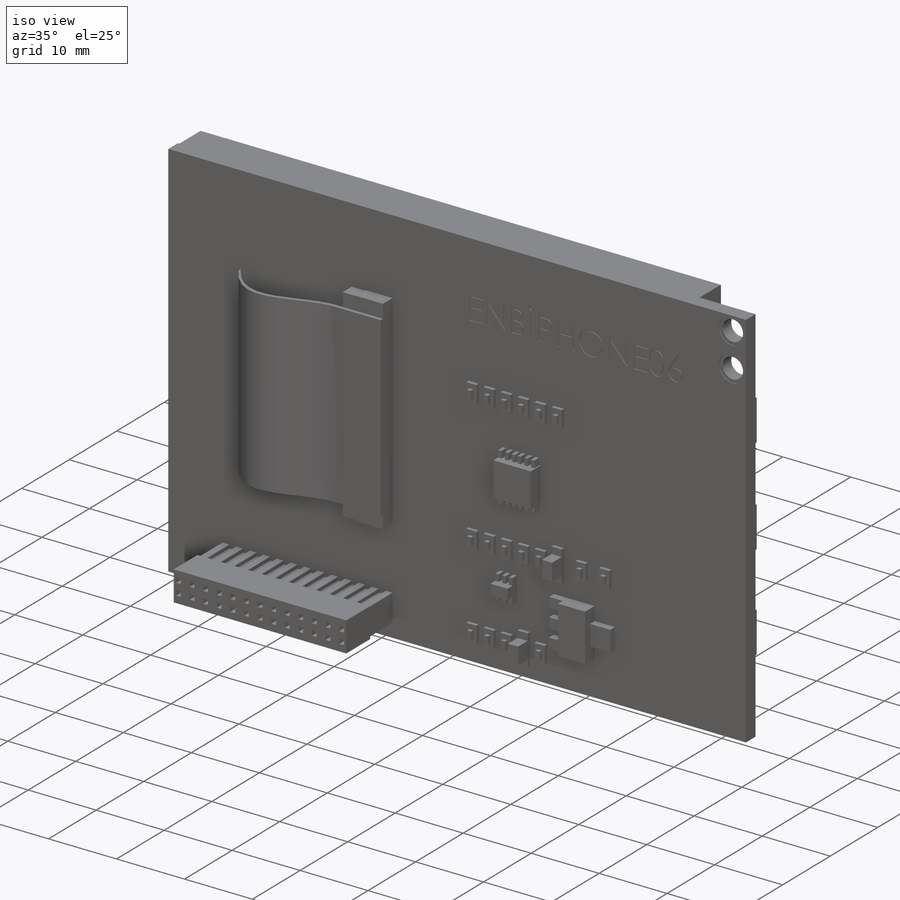
[diagram: iso view]
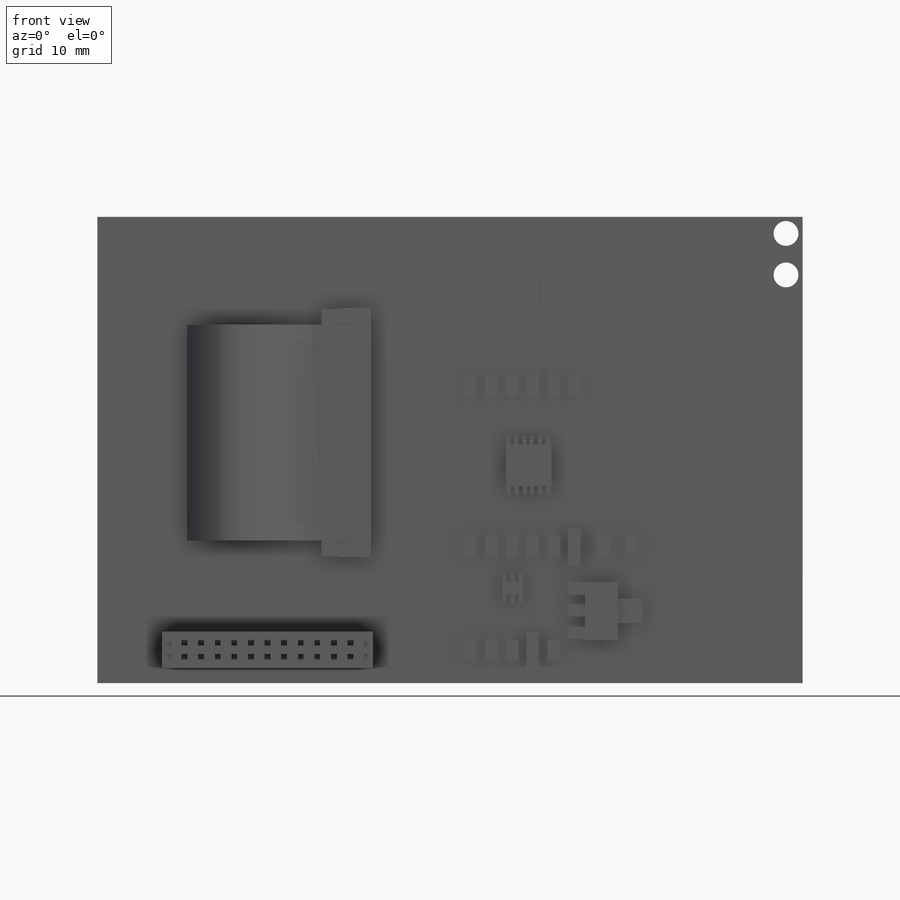
[diagram: front view]
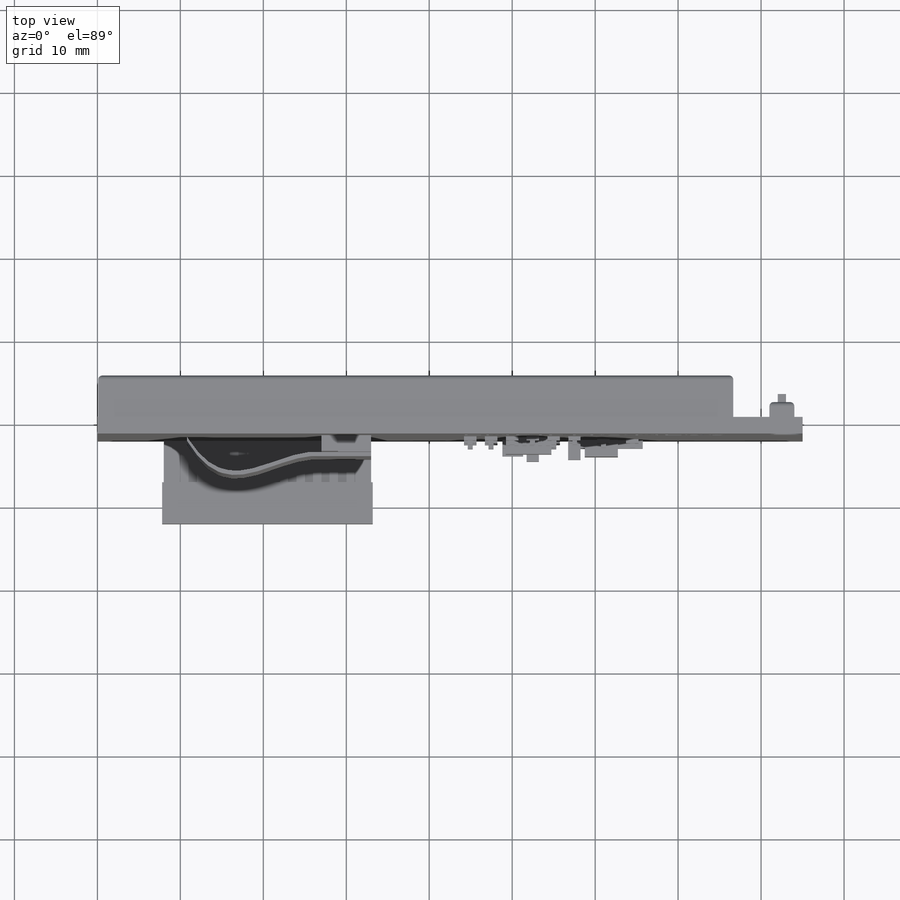
[diagram: top view]
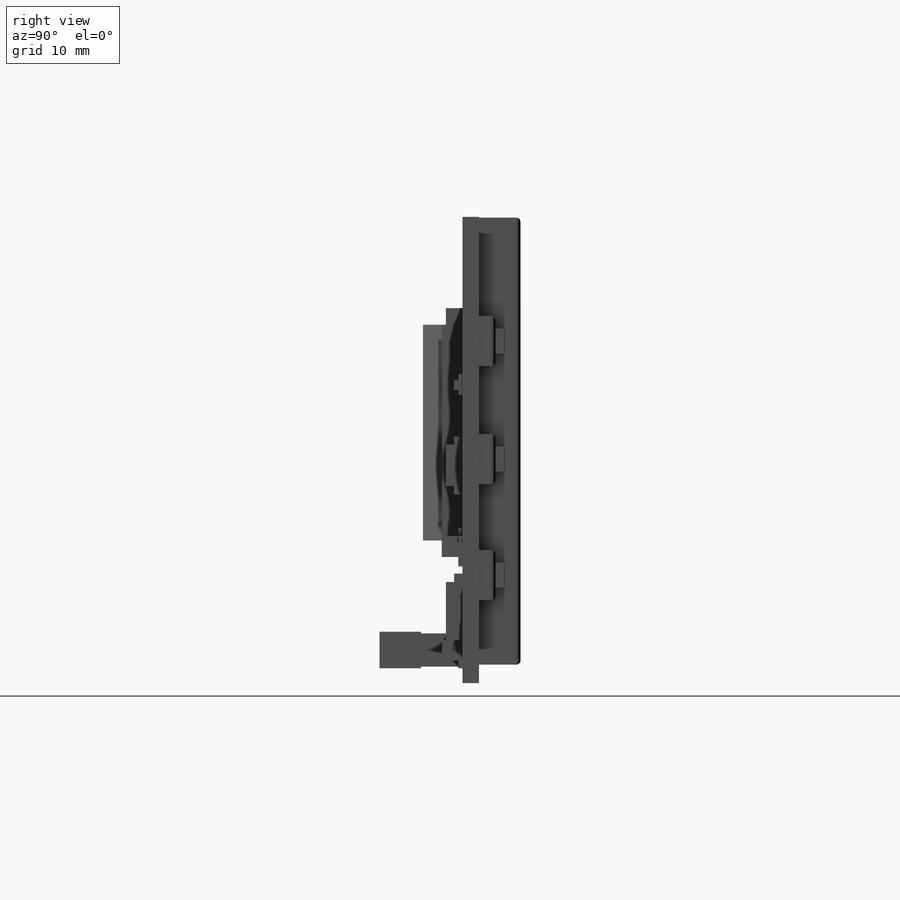
[diagram: right view]
SOLIDWORKS PART (.sldprt)
format: sldprt  version: not decoded by parser v0  size: 1,292,288 bytes
history: native  units: mm
features: sketch x20, extrude x15, cut_extrude x5, fillet x2, material x1 (+11 scaffold rows collapsed)
feature tree (54):
  scaffold x11  (default folders/planes/origin — collapsed)
  material  "Material <not specified>"
  sketch  "Sketch1"  dims[D1=85.01mm D2=56.21mm]
  extrude  "Boss-Extrude1"  Depth=2mm
  sketch  "Sketch2"  dims[D1=4.0mm D4=3.0mm D6=3.0mm D7=4.0mm D2=2.0mm D3=2.0mm D5=5.0mm]
  cut_extrude  "Cut-Extrude1"  Depth=2mm
  sketch  "Sketch4"  dims[D1=3.9mm D2=3.9mm]
  cut_extrude  "Cut-Extrude7"  Depth=0.1mm
  sketch  "Sketch5"  dims[D1=3.9mm D2=3.9mm]
  cut_extrude  "Cut-Extrude8"  Depth=0.1mm
  sketch  "Sketch6"  dims[c1.D1=2.23mm c1.D2=8.36mm c2.D1=0.1mm c2.D2=0.1mm c2.D3=2.23mm c2.D4=8.36mm]
  extrude  "Boss-Extrude2"  Depth=5mm
  sketch  "Sketch7"  dims[c1.D1=1.5mm c1.D2=1.5mm c1.D3=1.5mm c1.D4=1.5mm c2.D1=1.4mm c2.D2=1.4mm c2.D3=1.5mm c2.D4=1.5mm]
  cut_extrude  "Cut-Extrude9"  Depth=0.1mm
  fillet  "Fillet1"  Radius=0.5mm
  sketch  "Sketch8"  dims[D1=6.0mm D2=6.0mm D3=6.0mm D4=10.0mm D5=12.0mm D6=8.0mm D7=1.0mm D8=1.0mm D9=3.0mm D10=3.0mm D11=3.0mm]
  extrude  "Boss-Extrude3"  Depth=2mm
  fillet  "Fillet2"  Radius=0.5mm
  sketch  "Sketch9"  dims[D1=1.0mm D2=3.0mm D3=0.5mm D4=1.0mm D5=1.0mm D6=3.0mm D7=0.5mm D8=1.0mm D9=1.0mm D10=3.0mm D11=0.5mm D12=1.0mm]
  extrude  "Boss-Extrude4"  Depth=1mm
  sketch  "Sketch10"  dims[c1.D1=2.0mm c1.D2=8.0mm c1.D3=25.0mm c1.D4=4.0mm c2.D1=1.0mm c2.D5=1.0mm c2.D6=0.5mm c2.D7=0.5mm c2.D8=13.0]
  extrude  "Boss-Extrude5"  Depth=5mm
  sketch  "Sketch11"  dims[D1=0.2mm D2=0.2mm D3=0.2mm D4=0.2mm D5=0.7mm D6=0.7mm D7=0.35mm D8=1.0mm D9=13.0]
  extrude  "Boss-Extrude6"  Depth=5mm
  sketch  "Sketch13"  dims[D1=1.5mm D2=2.5mm D3=1.0mm D4=11.0mm D6=1.5mm D7=1.0mm D8=0.0mm D9=0.0mm D10=1.5mm D11=2.5mm D12=1.0mm D13=2.5mm D14=1.0mm D15=1.0mm D16=2.0mm D17=2.0mm D18=10.0mm D19=17.0mm D5=3.0]
  extrude  "Boss-Extrude7"  Depth=0.5mm
  sketch  "Sketch16"  dims[D1=0.6mm D2=1.2mm D3=0.45mm D4=0.6mm D5=3.0]
  extrude  "Boss-Extrude8"  Depth=0.5mm
  sketch  "Sketch17"  dims[D1=0.01mm D2=0.01mm]
  extrude  "Boss-Extrude9"  Depth=2mm
  sketch  "Sketch19"  dims[D1=4.0mm D2=0.5mm D3=7.0mm D4=1.5mm D5=2.5mm D6=5.5mm D7=5.0mm D8=6.0mm]
  extrude  "Boss-Extrude10"  Depth=2mm
  sketch  "Sketch21"  dims[D1=0.01mm D2=0.5mm D3=1.0mm D5=0.01mm D6=0.5mm D7=1.0mm D8=0.5mm D9=1.0mm D10=0.5mm D11=1.0mm D12=0.5mm D13=1.0mm D14=0.5mm D15=0.01mm D16=1.5mm D17=2.0mm D18=3.0mm D19=3.0mm D20=2.0mm D4=2.0 D21=3.0]
  extrude  "Boss-Extrude12"  Depth=1mm
  sketch  "Sketch22"  dims[D1=4.0mm D2=30.0mm]
  extrude  "Boss-Extrude13"  Depth=2mm
  sketch  "Sketch23"  dims[D1=0.1mm D2=0.1mm D3=2.0mm]
  extrude  "Boss-Extrude14"  Depth=1.9mm
  sketch  "Sketch25"  dims[D1=2.0mm D2=2.0mm D3=0.1mm]
  extrude  "Boss-Extrude15"  Depth=0.5mm
  sketch  "Sketch26"
  extrude  "Boss-Extrude16"  Depth=26mm
  sketch  "Sketch28"
  cut_extrude  "Cut-Extrude10"  Depth=0.1mm
decode coverage: 40 of 42 modeling features carry decoded parameters
note: suppression state not decoded; provenance and decode notes live in map.json
